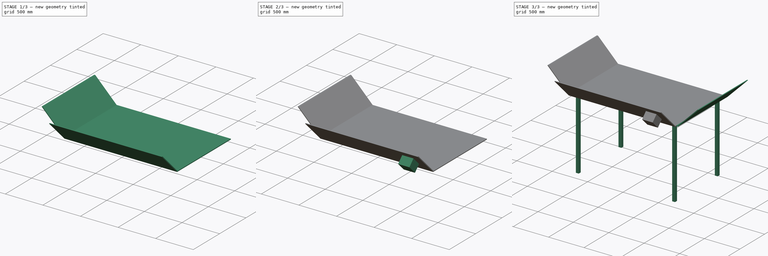
[diagram: build sequence overview — one tinted view per stage of 3, left to right]
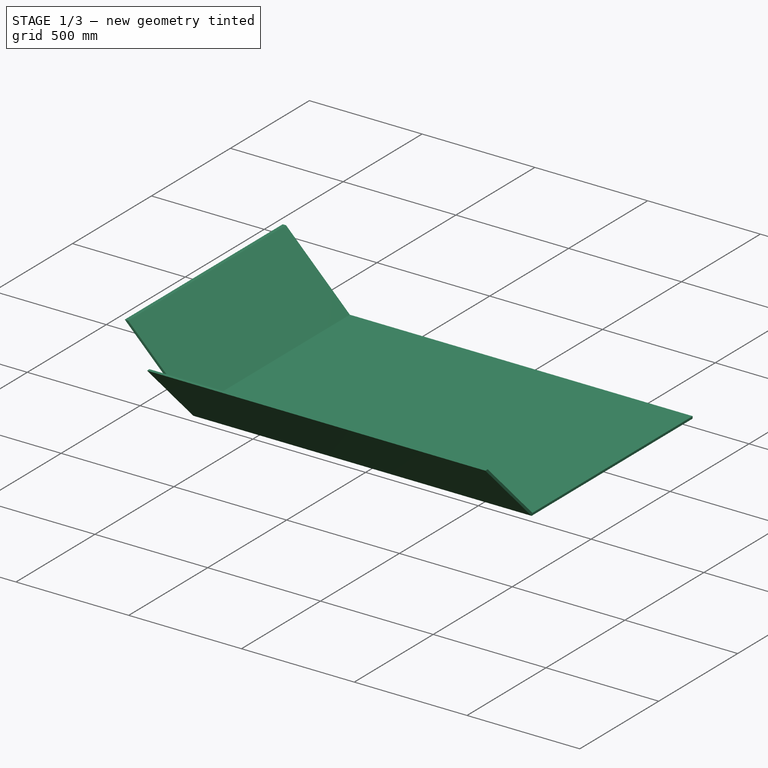
[diagram: stage 1 of 3 — iso view after this stage's code; geometry added in this stage tinted green]
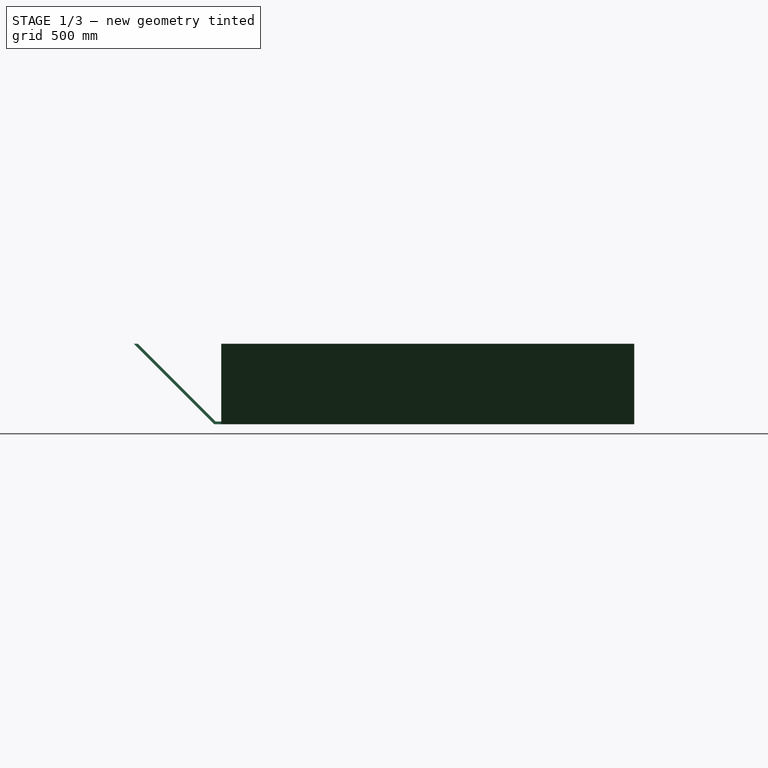
[diagram: stage 1 of 3 — front view after this stage's code; geometry added in this stage tinted green]
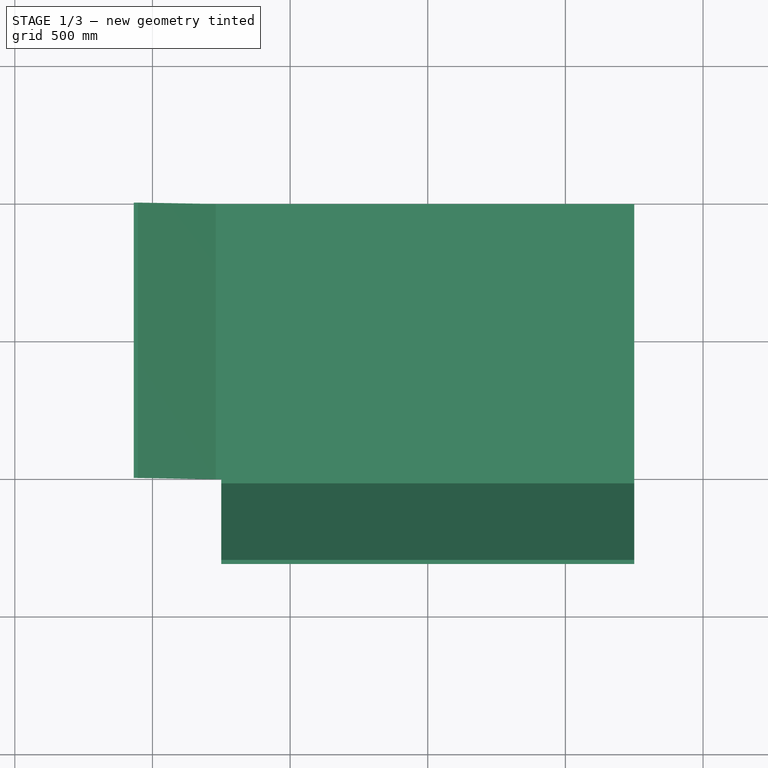
[diagram: stage 1 of 3 — top view after this stage's code; geometry added in this stage tinted green]
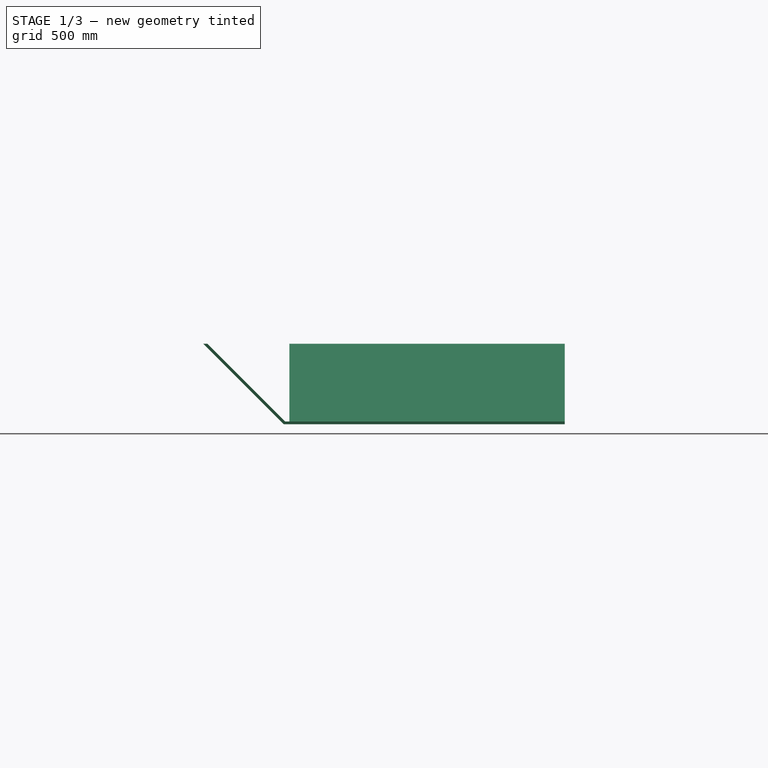
[diagram: stage 1 of 3 — right view after this stage's code; geometry added in this stage tinted green]
FCSTD DOCUMENT  (FreeCAD 0.16R6703 (Git))
Label: aaa
License: All rights reserved
LicenseURL: http://en.wikipedia.org/wiki/All_rights_reserved
objects: Part::RuledSurface×12, Sketcher::SketchObject×6, PartDesign::Pad×5, App::DocumentObjectGroup×5, PartDesign::Mirrored×2, PartDesign::Pocket×1, PartDesign::PolarPattern×1, PartDesign::MultiTransform×1
note: 34 computed .brp shape members not serialized (recipe doc carries the construction recipe); baked Part::Feature solids carry a one-line shape summary decoded from their .brp

FEATURE [Sketcher::SketchObject] Sketch
  sketch-geometry (4):
    g0: LineSegment StartX=-750 StartY=500 StartZ=0 EndX=750 EndY=500 EndZ=0
    g1: LineSegment StartX=750 StartY=500 StartZ=0 EndX=750 EndY=-500 EndZ=0
    g2: LineSegment StartX=750 StartY=-500 StartZ=0 EndX=-750 EndY=-500 EndZ=0
    g3: LineSegment StartX=-750 StartY=-500 StartZ=0 EndX=-750 EndY=500 EndZ=0
  constraints (11):
    c: Coincident(g0,g1)
    c: Coincident(g1,g2)
    c: Coincident(g2,g3)
    c: Coincident(g3,g0)
    c: Horizontal(g0)
    c: Horizontal(g2)
    c: Vertical(g1)
    c: Vertical(g3)
    c: Distance(g1) = 1000
    c: Distance(g0) = 1500
    c: Symmetric(g2,g0,g-1)
FEATURE [PartDesign::Pad] Pad
  Length = 10
  Length2 = 100
  Sketch = -> Sketch
  Type = 0
FEATURE [Sketcher::SketchObject] Sketch001
  ExternalGeometry = -> [Pad]
  Placement = pos=(0,-500,0) rot=(1,0,0;1.5708rad)
  Support = -> Pad [Face3]
  sketch-geometry (7):
    g0: LineSegment StartX=-770 StartY=10 StartZ=0 EndX=-1052.84 EndY=292.843 EndZ=0
    g1: LineSegment StartX=-1052.84 StartY=292.843 StartZ=0 EndX=-1067.84 EndY=292.843 EndZ=0
    g2: LineSegment StartX=-1067.84 StartY=292.843 StartZ=0 EndX=-785 EndY=10 EndZ=0
    g3: LineSegment StartX=-785 StartY=10 StartZ=0 EndX=-775 EndY=0 EndZ=0
    g4: LineSegment StartX=-775 StartY=0 StartZ=0 EndX=-750 EndY=0 EndZ=0
    g5: LineSegment StartX=-750 StartY=0 StartZ=0 EndX=-750 EndY=10 EndZ=0
    g6: LineSegment StartX=-750 StartY=10 StartZ=0 EndX=-770 EndY=10 EndZ=0
  constraints (20):
    c: Coincident(g0,g1)
    c: Horizontal(g1)
    c: Coincident(g1,g2)
    c: Coincident(g2,g3)
    c: Coincident(g3,g4)
    c: Horizontal(g4)
    c: Coincident(g4,g5)
    c: Vertical(g5)
    c: Coincident(g5,g6)
    c: Coincident(g6,g0)
    c: Horizontal(g6)
    c: Equal(g2,g0)
    c: Parallel(g0,g2)
    c: Angle(g6,g0) = 2.35619
    c: Parallel(g3,g2)
    c: Distance(g5) = 10
    c: Distance(g6) = 20
    c: Distance(g1) = 15
    c: Distance(g2) = 400
    c: Coincident(g5,g-3)
FEATURE [PartDesign::Pad] Pad001
  Length = 1000
  Length2 = 100
  Reversed = true
  Sketch = -> Sketch001
  Type = 0
FEATURE [PartDesign::Pad] Pad002
  Length = 1500
  Length2 = 1500
  Reversed = true
  Sketch = -> Sketch002
  Type = 0
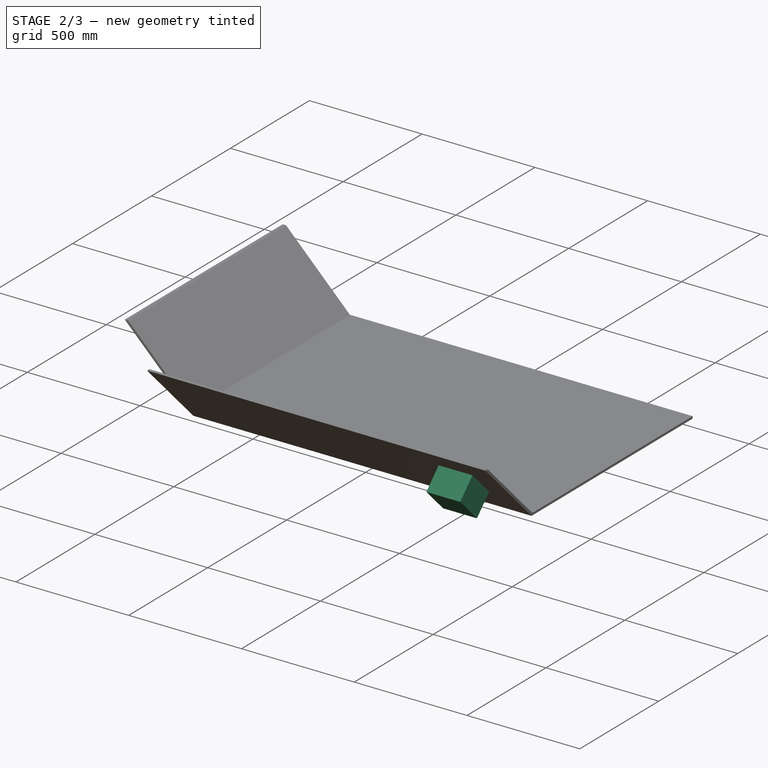
[diagram: stage 2 of 3 — iso view after this stage's code; geometry added in this stage tinted green]
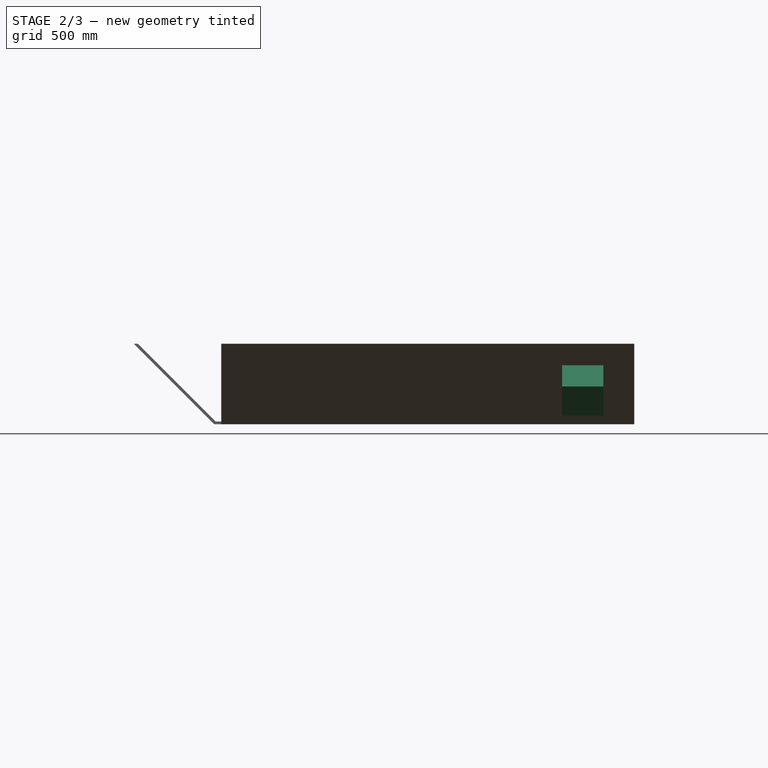
[diagram: stage 2 of 3 — front view after this stage's code; geometry added in this stage tinted green]
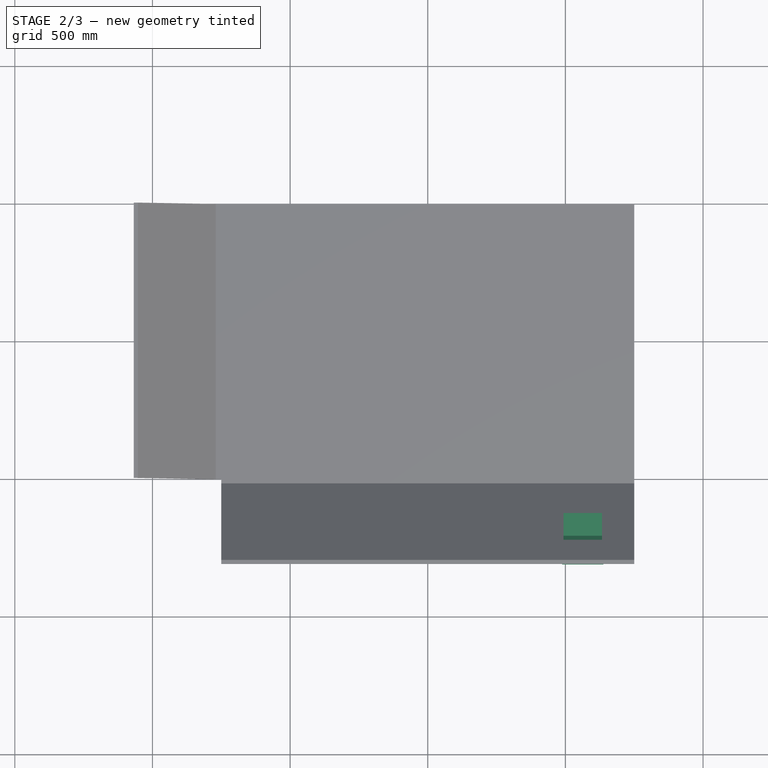
[diagram: stage 2 of 3 — top view after this stage's code; geometry added in this stage tinted green]
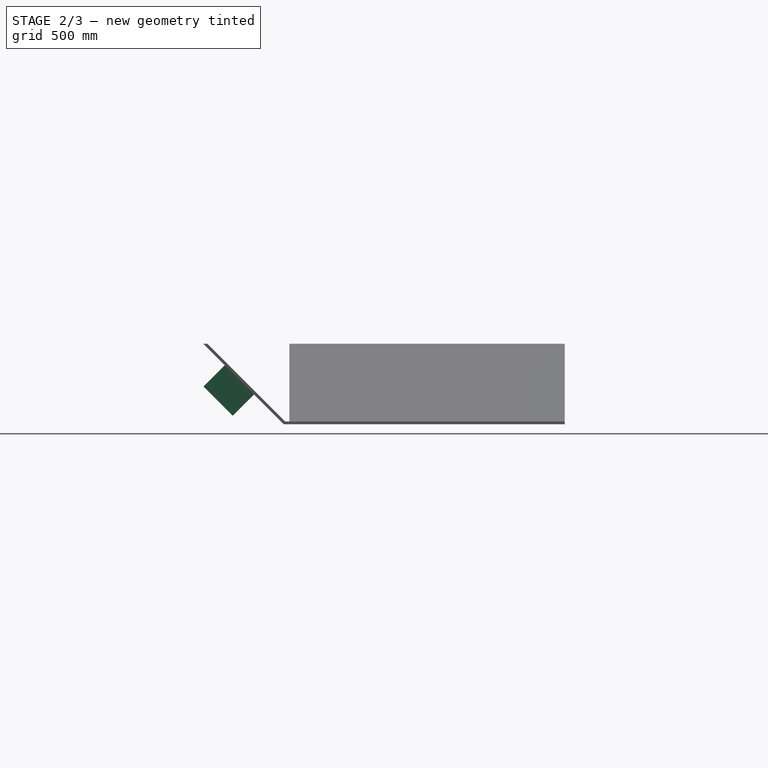
[diagram: stage 2 of 3 — right view after this stage's code; geometry added in this stage tinted green]
FEATURE [Sketcher::SketchObject] Sketch003
  ExternalGeometry = -> [Pad002]
  Placement = pos=(0,-252.5,-252.5) rot=(0,0.382683,0.92388;3.14159rad)
  Support = -> Pad002 [Face18]
  sketch-geometry (4):
    g0: LineSegment StartX=-638.099 StartY=671.231 StartZ=0 EndX=-488.099 EndY=671.231 EndZ=0
    g1: LineSegment StartX=-488.099 StartY=671.231 StartZ=0 EndX=-488.099 EndY=521.231 EndZ=0
    g2: LineSegment StartX=-488.099 StartY=521.231 StartZ=0 EndX=-638.099 EndY=521.231 EndZ=0
    g3: LineSegment StartX=-638.099 StartY=521.231 StartZ=0 EndX=-638.099 EndY=671.231 EndZ=0
  constraints (11):
    c: Coincident(g0,g1)
    c: Coincident(g1,g2)
    c: Coincident(g2,g3)
    c: Coincident(g3,g0)
    c: Horizontal(g0)
    c: Horizontal(g2)
    c: Vertical(g1)
    c: Vertical(g3)
    c: Distance(g0,g-3) = 100
    c: Equal(g2,g1)
    c: Distance(g2) = 150
FEATURE [PartDesign::Pad] Pad003
  Length = 120
  Length2 = 100
  Reversed = true
  Sketch = -> Sketch003
  Type = 0
FEATURE [Sketcher::SketchObject] Sketch004
  ExternalGeometry = -> [Pad003]
  Placement = pos=(0,-252.5,-252.5) rot=(-1,0,0;0.785398rad)
  Support = -> Pad003 [Face21]
  sketch-geometry (4):
    g0: LineSegment StartX=633.099 StartY=-666.231 StartZ=0 EndX=493.099 EndY=-666.231 EndZ=0
    g1: LineSegment StartX=493.099 StartY=-666.231 StartZ=0 EndX=493.099 EndY=-526.231 EndZ=0
    g2: LineSegment StartX=493.099 StartY=-526.231 StartZ=0 EndX=633.099 EndY=-526.231 EndZ=0
    g3: LineSegment StartX=633.099 StartY=-526.231 StartZ=0 EndX=633.099 EndY=-666.231 EndZ=0
  constraints (12):
    c: Coincident(g0,g1)
    c: Coincident(g1,g2)
    c: Coincident(g2,g3)
    c: Coincident(g3,g0)
    c: Horizontal(g0)
    c: Horizontal(g2)
    c: Vertical(g1)
    c: Vertical(g3)
    c: Equal(g1,g2)
    c: Distance(g2) = 140
    c: Distance(g-4,g1) = 5
    c: Distance(g-3,g0) = 5
FEATURE [PartDesign::Pocket] Pocket
  Length = 115
  Sketch = -> Sketch004
  Type = 0
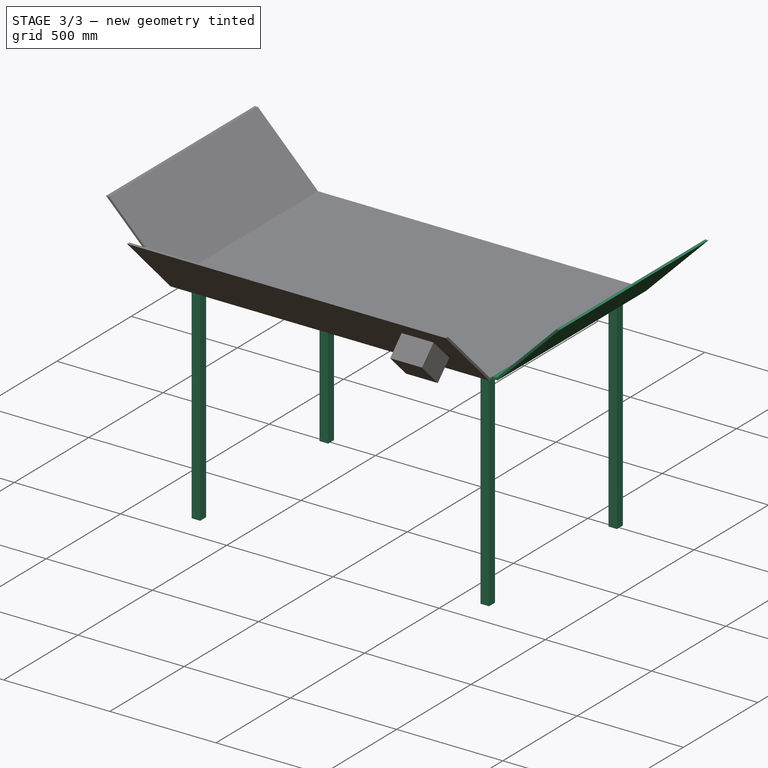
[diagram: stage 3 of 3 — iso view after this stage's code; geometry added in this stage tinted green]
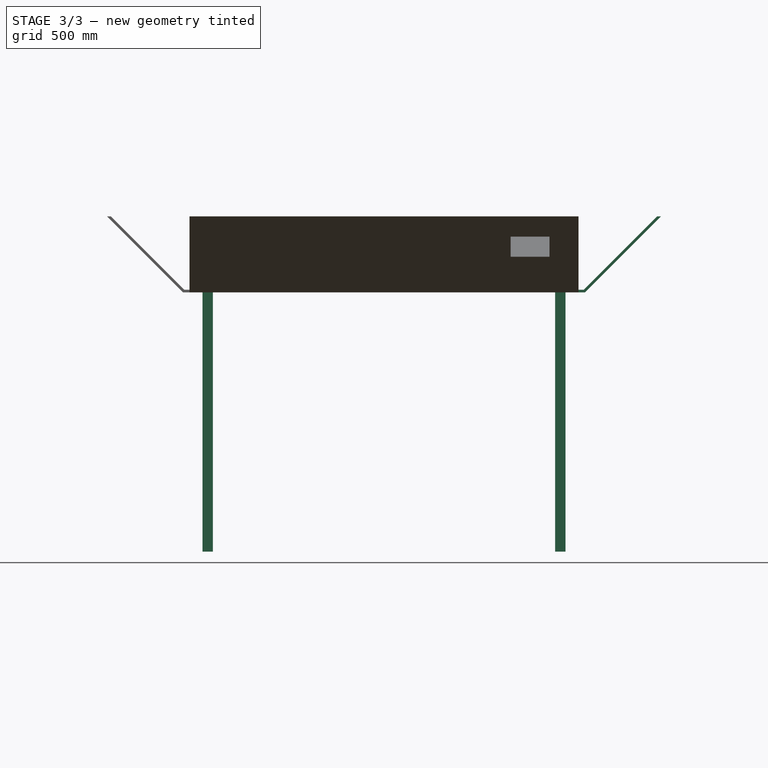
[diagram: stage 3 of 3 — front view after this stage's code; geometry added in this stage tinted green]
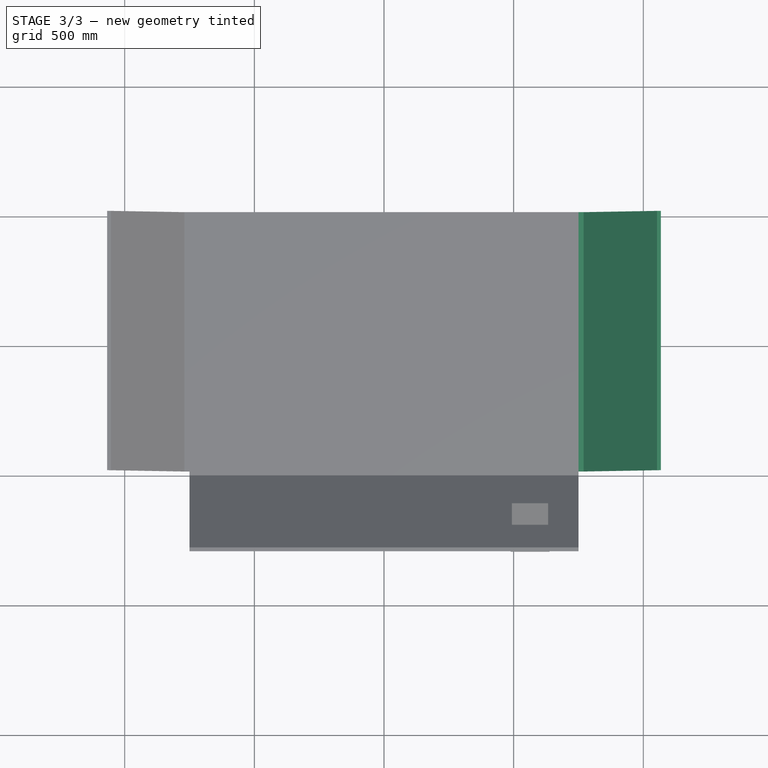
[diagram: stage 3 of 3 — top view after this stage's code; geometry added in this stage tinted green]
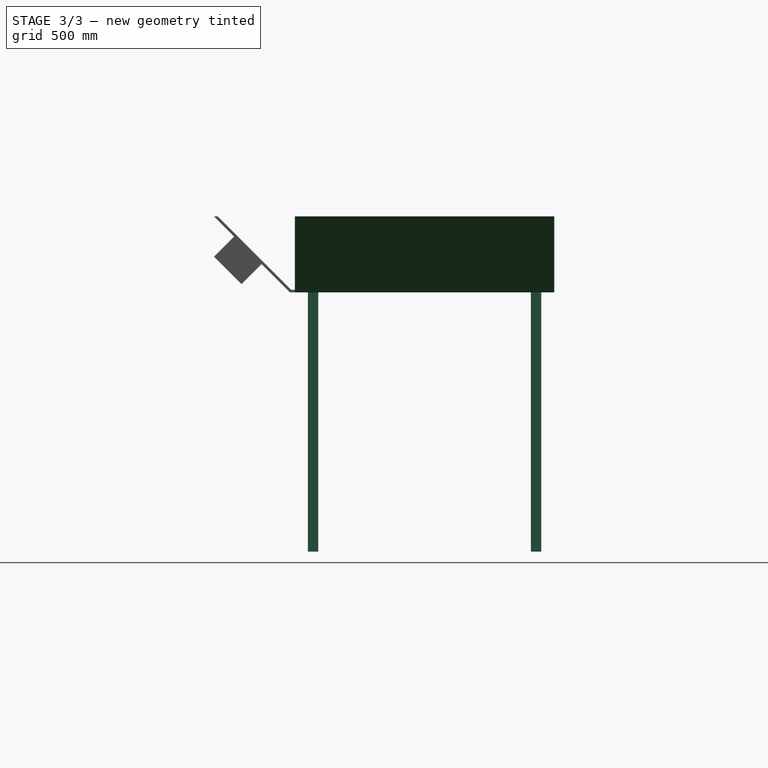
[diagram: stage 3 of 3 — right view after this stage's code; geometry added in this stage tinted green]
FEATURE [Sketcher::SketchObject] Sketch002
  ExternalGeometry = -> [Pad001]
  Placement = pos=(750,0,0) rot=(0.57735,0.57735,0.57735;2.0944rad)
  Support = -> Pad001 [Face1]
  sketch-geometry (7):
    g0: LineSegment StartX=-500 StartY=10 StartZ=0 EndX=-515 EndY=10 EndZ=0
    g1: LineSegment StartX=-515 StartY=10 StartZ=0 EndX=-797.843 EndY=292.843 EndZ=0
    g2: LineSegment StartX=-797.843 StartY=292.843 StartZ=0 EndX=-812.843 EndY=292.843 EndZ=0
    g3: LineSegment StartX=-812.843 StartY=292.843 StartZ=0 EndX=-530 EndY=10 EndZ=0
    g4: LineSegment StartX=-530 StartY=10 StartZ=0 EndX=-520 EndY=0 EndZ=0
    g5: LineSegment StartX=-520 StartY=0 StartZ=0 EndX=-500 EndY=0 EndZ=0
    g6: LineSegment StartX=-500 StartY=0 StartZ=0 EndX=-500 EndY=10 EndZ=0
  constraints (20):
    c: Horizontal(g0)
    c: Coincident(g0,g1)
    c: Coincident(g1,g2)
    c: Horizontal(g2)
    c: Coincident(g2,g3)
    c: Coincident(g3,g4)
    c: Coincident(g4,g5)
    c: Horizontal(g5)
    c: Coincident(g5,g6)
    c: Coincident(g6,g0)
    c: Vertical(g6)
    c: Parallel(g1,g3)
    c: Equal(g1,g3)
    c: Distance(g6) = 10
    c: Distance(g2) = 15
    c: Parallel(g4,g3)
    c: Distance(g0) = 15
    c: Distance(g3) = 400
    c: Angle(g0,g1) = 2.35619
    c: Coincident(g5,g-3)
FEATURE [PartDesign::Mirrored] Mirrored002
  MirrorPlane = -> Sketch001 [V_Axis]
  Originals = -> [Pad001]
FEATURE [Sketcher::SketchObject] Sketch005
  ExternalGeometry = -> [Pad]
  Placement = pos=(0,0,0) rot=(1,0,0;3.14159rad)
  Support = -> Pad [Face5]
  sketch-geometry (4):
    g0: LineSegment StartX=-700 StartY=450 StartZ=0 EndX=-660 EndY=450 EndZ=0
    g1: LineSegment StartX=-660 StartY=450 StartZ=0 EndX=-660 EndY=410 EndZ=0
    g2: LineSegment StartX=-660 StartY=410 StartZ=0 EndX=-700 EndY=410 EndZ=0
    g3: LineSegment StartX=-700 StartY=410 StartZ=0 EndX=-700 EndY=450 EndZ=0
  constraints (12):
    c: Coincident(g0,g1)
    c: Coincident(g1,g2)
    c: Coincident(g2,g3)
    c: Coincident(g3,g0)
    c: Horizontal(g0)
    c: Horizontal(g2)
    c: Vertical(g1)
    c: Vertical(g3)
    c: Distance(g0,g-3) = 50
    c: Equal(g2,g1)
    c: Distance(g1) = 40
    c: Distance(g2,g-4) = 50
FEATURE [PartDesign::Pad] Pad004  label="leg1"
  Length = 1000
  Length2 = 100
  Sketch = -> Sketch005
  Type = 0
FEATURE [PartDesign::PolarPattern] PolarPattern
  Angle = 360
  Axis = -> Sketch005 [N_Axis]
  Occurrences = 2
FEATURE [PartDesign::Mirrored] Mirrored
  MirrorPlane = -> Sketch005 [V_Axis]
FEATURE [PartDesign::MultiTransform] MultiTransform
  Originals = -> [Pad004]
  Transformations = -> [PolarPattern,Mirrored]
FEATURE [App::DocumentObjectGroup] Group  label="pocket"
  Group = -> [Pad003,Pocket]
FEATURE [App::DocumentObjectGroup] Group001  label="legs"
  Group = -> [Pad004,MultiTransform]
FEATURE [Part::RuledSurface] Ruled_Surface
  Curve1 = -> Mirrored002 [Edge35]
  Curve2 = -> Pocket [Edge36]
  Orientation = 0
FEATURE [Part::RuledSurface] Ruled_Surface001
  Curve1 = -> Pocket [Edge35]
  Curve2 = -> Mirrored002 [Edge33]
  Orientation = 0
FEATURE [Part::RuledSurface] Ruled_Surface002
  Curve1 = -> Mirrored002 [Edge36]
  Curve2 = -> Pocket [Edge38]
  Orientation = 0
FEATURE [Part::RuledSurface] Ruled_Surface003
  Curve1 = -> Pocket [Edge32]
  Curve2 = -> Mirrored002 [Edge34]
  Orientation = 0
FEATURE [Part::RuledSurface] Ruled_Surface004
  Curve1 = -> Pocket [Edge37]
  Curve2 = -> Mirrored002 [Edge37]
  Orientation = 0
FEATURE [Part::RuledSurface] Ruled_Surface005
  Curve1 = -> Ruled_Surface004 [Edge2]
  Curve2 = -> Pocket [Edge30]
  Orientation = 0
FEATURE [App::DocumentObjectGroup] Group003  label="corner_left"
  Group = -> [Ruled_Surface,Ruled_Surface001,Ruled_Surface002,Ruled_Surface003,Ruled_Surface005]
FEATURE [Part::RuledSurface] Ruled_Surface006
  Curve1 = -> Mirrored002 [Edge8]
  Curve2 = -> Pocket [Edge42]
  Orientation = 0
FEATURE [Part::RuledSurface] Ruled_Surface007
  Curve1 = -> Mirrored002 [Edge10]
  Curve2 = -> Pocket [Edge43]
  Orientation = 0
FEATURE [Part::RuledSurface] Ruled_Surface008
  Curve1 = -> Mirrored002 [Edge12]
  Curve2 = -> Pocket [Edge44]
  Orientation = 0
FEATURE [Part::RuledSurface] Ruled_Surface009
  Curve1 = -> Mirrored002 [Edge9]
  Curve2 = -> Pocket [Edge33]
  Orientation = 0
FEATURE [Part::RuledSurface] Ruled_Surface010
  Curve1 = -> Mirrored002 [Edge6]
  Curve2 = -> Pocket [Edge41]
  Orientation = 0
FEATURE [Part::RuledSurface] Ruled_Surface011
  Curve1 = -> Mirrored002 [Edge2]
  Curve2 = -> Pocket [Edge31]
  Orientation = 0
FEATURE [App::DocumentObjectGroup] Group004  label="corner_right"
  Group = -> [Ruled_Surface006,Ruled_Surface007,Ruled_Surface008,Ruled_Surface009,Ruled_Surface010,Ruled_Surface011]
FEATURE [App::DocumentObjectGroup] Group002  label="borders"
  Group = -> [Pad002,Mirrored002,Pad001,Group004,Group003]
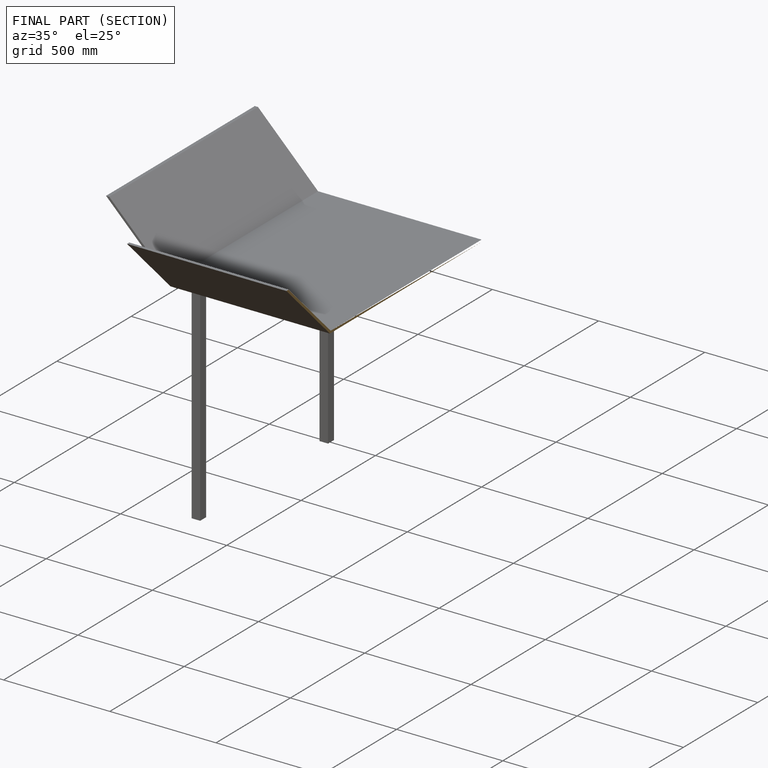
[diagram: finished part — half-section view (interior)]
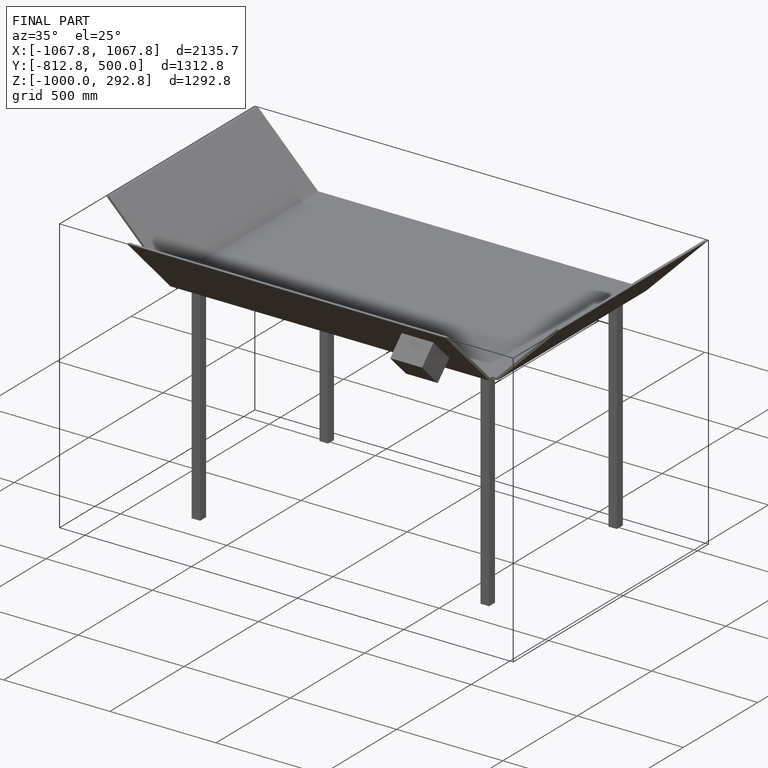
[diagram: finished part — iso view with bounding-box wireframe]
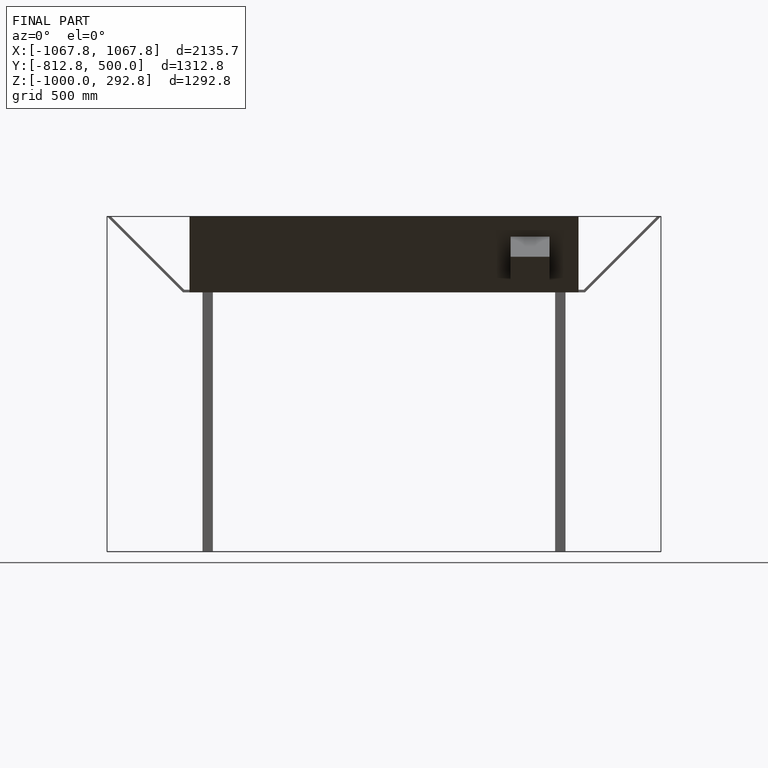
[diagram: finished part — front view with bounding-box wireframe]
